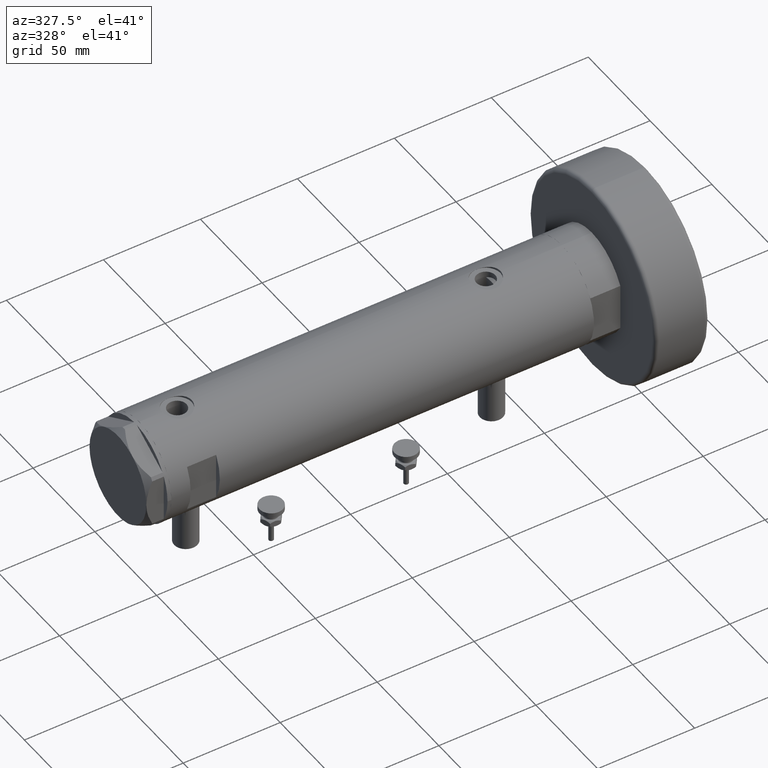
[diagram: clean part render]
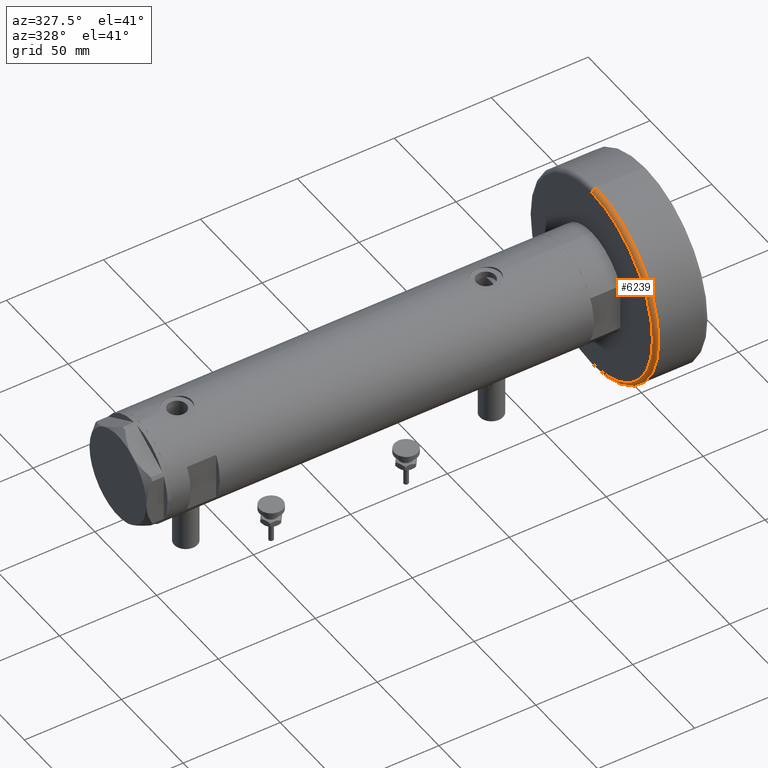
[diagram: same view with one face highlighted and labeled with its STEP entity id]
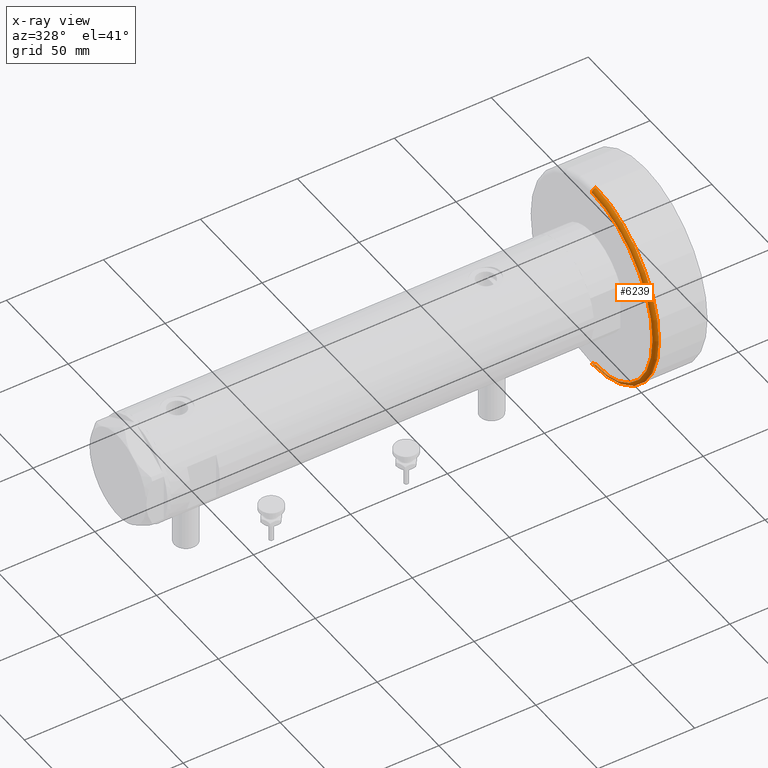
[diagram: x-ray of the same camera — body ghosted, the highlighted face saturated]
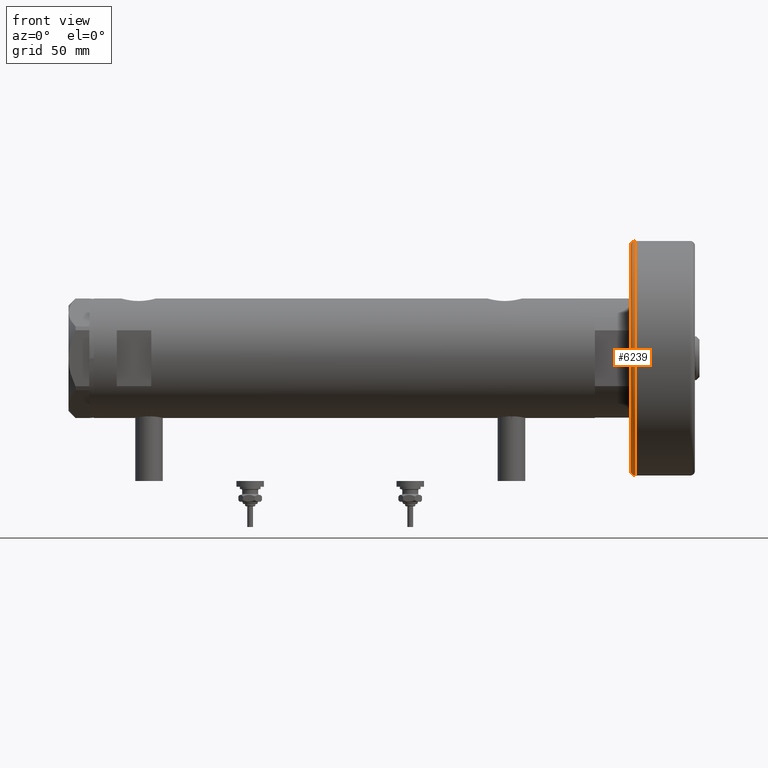
[diagram: same view with one face highlighted and labeled with its STEP entity id]
A machine part, auxiliary view. The second image highlights one B-rep face of the part: STEP entity #6239.
The next image is the same camera in x-ray: the body ghosted, the highlighted face saturated — about 0% of this face is hidden behind the body in this view.
A second angle (front view) of the same face is appended — the face is thin or edge-on in the first view.
In plain terms, the highlighted toroidal blend (fillet) surface has major radius 49 mm and minor (blend) radius 2 mm.
Its self-contained STEP definition (entity closure, byte-faithful):
#9 = CARTESIAN_POINT ( 'NONE',  ( 0.000000000000000000, 0.000000000000000000, 1.999999999999998224 ) ) ;
#44 = DIRECTION ( 'NONE',  ( 0.000000000000000000, 0.000000000000000000, 1.000000000000000000 ) ) ;
#91 = AXIS2_PLACEMENT_3D ( 'NONE', #9, #44, #1538 ) ;
#146 = EDGE_CURVE ( 'NONE', #644, #3813, #4958, .T. ) ;
#343 = VERTEX_POINT ( 'NONE', #5419 ) ;
#509 = VERTEX_POINT ( 'NONE', #4104 ) ;
#525 = EDGE_CURVE ( 'NONE', #509, #3813, #1936, .T. ) ;
#625 = ORIENTED_EDGE ( 'NONE', *, *, #3837, .F. ) ;
#644 = VERTEX_POINT ( 'NONE', #4879 ) ;
#1085 = DIRECTION ( 'NONE',  ( 1.224646799147353207E-16, 1.000000000000000000, -0.000000000000000000 ) ) ;
#1094 = DIRECTION ( 'NONE',  ( -0.000000000000000000, -0.000000000000000000, -1.000000000000000000 ) ) ;
#1538 = DIRECTION ( 'NONE',  ( 1.000000000000000000, 0.000000000000000000, 0.000000000000000000 ) ) ;
#1631 = DIRECTION ( 'NONE',  ( 1.000000000000000000, 0.000000000000000000, 0.000000000000000000 ) ) ;
#1652 = CARTESIAN_POINT ( 'NONE',  ( 50.99999999999999289, 6.245698675651499656E-15, 1.999999999999998224 ) ) ;
#1732 = ORIENTED_EDGE ( 'NONE', *, *, #146, .F. ) ;
#1936 = CIRCLE ( 'NONE', #5180, 2.000000000000000000 ) ;
#1979 = CIRCLE ( 'NONE', #5553, 48.99999999999998579 ) ;
#2035 = ORIENTED_EDGE ( 'NONE', *, *, #525, .T. ) ;
#2292 = CIRCLE ( 'NONE', #2935, 2.000000000000001776 ) ;
#2381 = FACE_OUTER_BOUND ( 'NONE', #2682, .T. ) ;
#2585 = DIRECTION ( 'NONE',  ( 0.000000000000000000, -1.000000000000000000, 0.000000000000000000 ) ) ;
#2682 = EDGE_LOOP ( 'NONE', ( #625, #5491, #2035, #1732 ) ) ;
#2691 = CARTESIAN_POINT ( 'NONE',  ( -48.99999999999998579, 6.000769315822029359E-15, 1.999999999999998224 ) ) ;
#2761 = CARTESIAN_POINT ( 'NONE',  ( 0.000000000000000000, 0.000000000000000000, 0.000000000000000000 ) ) ;
#2935 = AXIS2_PLACEMENT_3D ( 'NONE', #2691, #1085, #5211 ) ;
#3360 = EDGE_CURVE ( 'NONE', #509, #343, #1979, .T. ) ;
#3633 = CARTESIAN_POINT ( 'NONE',  ( 48.99999999999998579, 0.000000000000000000, 1.999999999999998224 ) ) ;
#3813 = VERTEX_POINT ( 'NONE', #1652 ) ;
#3831 = AXIS2_PLACEMENT_3D ( 'NONE', #6529, #3937, #6064 ) ;
#3837 = EDGE_CURVE ( 'NONE', #343, #644, #2292, .T. ) ;
#3937 = DIRECTION ( 'NONE',  ( 0.000000000000000000, 0.000000000000000000, 1.000000000000000000 ) ) ;
#4104 = CARTESIAN_POINT ( 'NONE',  ( 48.99999999999998579, 0.000000000000000000, 0.000000000000000000 ) ) ;
#4879 = CARTESIAN_POINT ( 'NONE',  ( -50.99999999999999289, 0.000000000000000000, 1.999999999999998224 ) ) ;
#4958 = CIRCLE ( 'NONE', #91, 50.99999999999999289 ) ;
#5180 = AXIS2_PLACEMENT_3D ( 'NONE', #3633, #2585, #5230 ) ;
#5211 = DIRECTION ( 'NONE',  ( -1.000000000000000000, 1.224646799147353454E-16, 0.000000000000000000 ) ) ;
#5230 = DIRECTION ( 'NONE',  ( 0.000000000000000000, 0.000000000000000000, -1.000000000000000000 ) ) ;
#5419 = CARTESIAN_POINT ( 'NONE',  ( -48.99999999999998579, 6.123233995736764507E-15, 0.000000000000000000 ) ) ;
#5491 = ORIENTED_EDGE ( 'NONE', *, *, #3360, .F. ) ;
#5553 = AXIS2_PLACEMENT_3D ( 'NONE', #2761, #1094, #1631 ) ;
#6064 = DIRECTION ( 'NONE',  ( 1.000000000000000000, 0.000000000000000000, 0.000000000000000000 ) ) ;
#6228 = TOROIDAL_SURFACE ( 'NONE', #3831, 48.99999999999998579, 2.000000000000000000 ) ;
#6239 = ADVANCED_FACE ( 'NONE', ( #2381 ), #6228, .T. ) ;
#6529 = CARTESIAN_POINT ( 'NONE',  ( 0.000000000000000000, 0.000000000000000000, 1.999999999999998224 ) ) ;